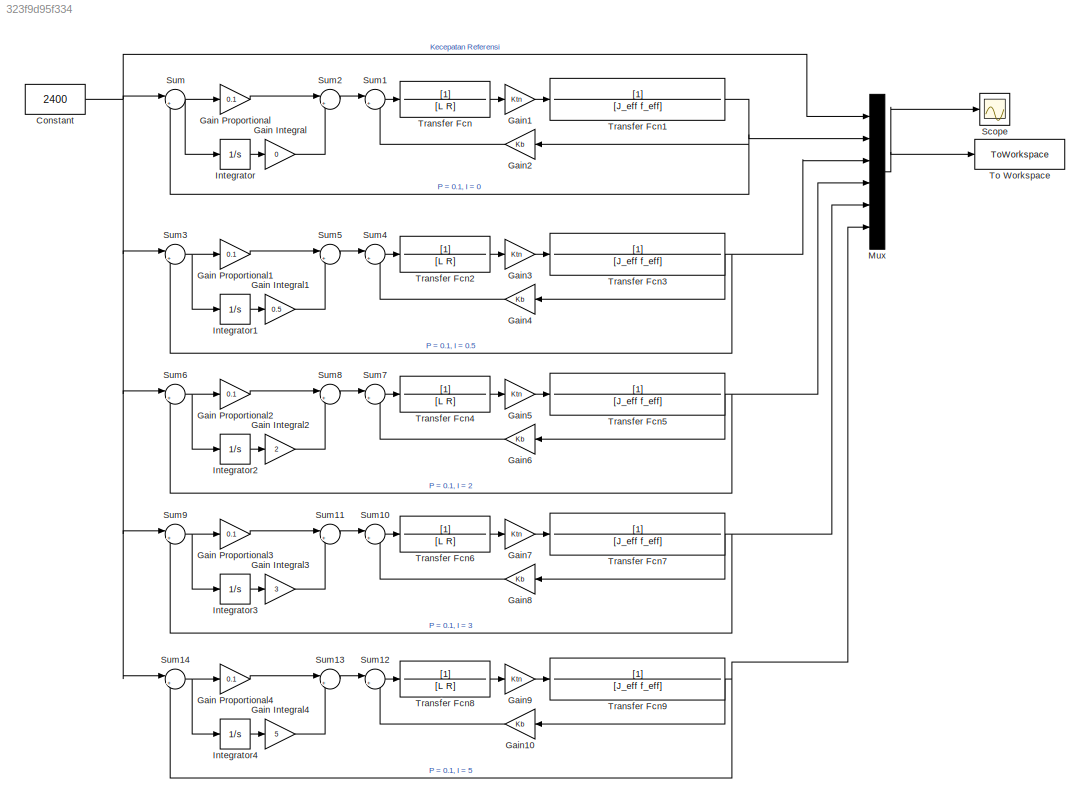
MODEL slx_323f9d95f334
KIND model
CONFIG AbsTol = auto
CONFIG EnableMultiTasking = off
CONFIG FixedStep = auto
CONFIG MaxStep = auto
CONFIG MinStep = auto
CONFIG RelTol = 1e-3
CONFIG SampleTimeConstraint = Unconstrained
CONFIG SolverName = VariableStepAuto
CONFIG StartTime = 0.0
CONFIG StopTime = 2.5
BLOCK [Constant] Constant
  Value = 2400
BLOCK [Gain] Gain Integral
  Gain = 0
BLOCK [Gain] Gain Integral1
  Gain = 0.5
BLOCK [Gain] Gain Integral2
  Gain = 2
BLOCK [Gain] Gain Integral3
  Gain = 3
BLOCK [Gain] Gain Integral4
  Gain = 5
BLOCK [Gain] Gain Proportional
  Gain = 0.1
BLOCK [Gain] Gain Proportional1
  Gain = 0.1
BLOCK [Gain] Gain Proportional2
  Gain = 0.1
BLOCK [Gain] Gain Proportional3
  Gain = 0.1
BLOCK [Gain] Gain Proportional4
  Gain = 0.1
BLOCK [Gain] Gain1
  Gain = Ktn
BLOCK [Gain] Gain10
  Gain = Kb
BLOCK [Gain] Gain2
  Gain = Kb
BLOCK [Gain] Gain3
  Gain = Ktn
BLOCK [Gain] Gain4
  Gain = Kb
BLOCK [Gain] Gain5
  Gain = Ktn
BLOCK [Gain] Gain6
  Gain = Kb
BLOCK [Gain] Gain7
  Gain = Ktn
BLOCK [Gain] Gain8
  Gain = Kb
BLOCK [Gain] Gain9
  Gain = Ktn
BLOCK [Integrator] Integrator
BLOCK [Integrator] Integrator1
BLOCK [Integrator] Integrator2
BLOCK [Integrator] Integrator3
BLOCK [Integrator] Integrator4
BLOCK [Mux] Mux
  DisplayOption = bar
  Inputs = 6
BLOCK [Scope] Scope
  Floating = off
  NumInputPorts = 1
  ScopeSpecificationString = Simulink.scopes.TimeScopeBlockCfg('CurrentConfiguration', extmgr.ConfigurationSet(extmgr.Configuration('Core','General UI',true),extmgr.Configuration('Core','Source UI',true),extmgr.Configuration('Sources','WiredSimulink',true),extmgr.Configuration('Visuals','Time Domain',true,'SerializedDisplays',{struct('MinYLimReal','-386.24892','MaxYLimReal','3476.24031','YLabelReal','','MinYLimMag',' 0.00000'...<+1687ch>
BLOCK [Sum] Sum
  Inputs = |+-
BLOCK [Sum] Sum1
  Inputs = |+-
BLOCK [Sum] Sum10
  Inputs = |+-
BLOCK [Sum] Sum11
  Inputs = |++
BLOCK [Sum] Sum12
  Inputs = |+-
BLOCK [Sum] Sum13
  Inputs = |++
BLOCK [Sum] Sum14
  Inputs = |+-
BLOCK [Sum] Sum2
  Inputs = |++
BLOCK [Sum] Sum3
  Inputs = |+-
BLOCK [Sum] Sum4
  Inputs = |+-
BLOCK [Sum] Sum5
  Inputs = |++
BLOCK [Sum] Sum6
  Inputs = |+-
BLOCK [Sum] Sum7
  Inputs = |+-
BLOCK [Sum] Sum8
  Inputs = |++
BLOCK [Sum] Sum9
  Inputs = |+-
BLOCK [ToWorkspace] To Workspace
  FixptAsFi = on
  MaxDataPoints = inf
  SampleTime = -1
  SaveFormat = Timeseries
  VariableName = DC
BLOCK [TransferFcn] Transfer Fcn
  Denominator = [L R]
BLOCK [TransferFcn] Transfer Fcn1
  Denominator = [J_eff f_eff]
BLOCK [TransferFcn] Transfer Fcn2
  Denominator = [L R]
BLOCK [TransferFcn] Transfer Fcn3
  Denominator = [J_eff f_eff]
BLOCK [TransferFcn] Transfer Fcn4
  Denominator = [L R]
BLOCK [TransferFcn] Transfer Fcn5
  Denominator = [J_eff f_eff]
BLOCK [TransferFcn] Transfer Fcn6
  Denominator = [L R]
BLOCK [TransferFcn] Transfer Fcn7
  Denominator = [J_eff f_eff]
BLOCK [TransferFcn] Transfer Fcn8
  Denominator = [L R]
BLOCK [TransferFcn] Transfer Fcn9
  Denominator = [J_eff f_eff]
NET Constant:1 -> Mux:1, Sum14:1, Sum3:1, Sum6:1, Sum9:1, Sum:1
LINE Gain Integral1:1 -> Sum5:2
LINE Gain Integral2:1 -> Sum8:2
LINE Gain Integral3:1 -> Sum11:2
LINE Gain Integral4:1 -> Sum13:2
LINE Gain Integral:1 -> Sum2:2
LINE Gain Proportional1:1 -> Sum5:1
LINE Gain Proportional2:1 -> Sum8:1
LINE Gain Proportional3:1 -> Sum11:1
LINE Gain Proportional4:1 -> Sum13:1
LINE Gain Proportional:1 -> Sum2:1
LINE Gain10:1 -> Sum12:2
LINE Gain1:1 -> Transfer Fcn1:1
LINE Gain2:1 -> Sum1:2
LINE Gain3:1 -> Transfer Fcn3:1
LINE Gain4:1 -> Sum4:2
LINE Gain5:1 -> Transfer Fcn5:1
LINE Gain6:1 -> Sum7:2
LINE Gain7:1 -> Transfer Fcn7:1
LINE Gain8:1 -> Sum10:2
LINE Gain9:1 -> Transfer Fcn9:1
LINE Integrator1:1 -> Gain Integral1:1
LINE Integrator2:1 -> Gain Integral2:1
LINE Integrator3:1 -> Gain Integral3:1
LINE Integrator4:1 -> Gain Integral4:1
LINE Integrator:1 -> Gain Integral:1
NET Mux:1 -> Scope:1, To Workspace:1
LINE Sum10:1 -> Transfer Fcn6:1
LINE Sum11:1 -> Sum10:1
LINE Sum12:1 -> Transfer Fcn8:1
LINE Sum13:1 -> Sum12:1
NET Sum14:1 -> Gain Proportional4:1, Integrator4:1
LINE Sum1:1 -> Transfer Fcn:1
LINE Sum2:1 -> Sum1:1
NET Sum3:1 -> Gain Proportional1:1, Integrator1:1
LINE Sum4:1 -> Transfer Fcn2:1
LINE Sum5:1 -> Sum4:1
NET Sum6:1 -> Gain Proportional2:1, Integrator2:1
LINE Sum7:1 -> Transfer Fcn4:1
LINE Sum8:1 -> Sum7:1
NET Sum9:1 -> Gain Proportional3:1, Integrator3:1
NET Sum:1 -> Gain Proportional:1, Integrator:1
NET Transfer Fcn1:1 -> Gain2:1, Mux:2, Sum:2
LINE Transfer Fcn2:1 -> Gain3:1
NET Transfer Fcn3:1 -> Gain4:1, Mux:3, Sum3:2
LINE Transfer Fcn4:1 -> Gain5:1
NET Transfer Fcn5:1 -> Gain6:1, Mux:4, Sum6:2
LINE Transfer Fcn6:1 -> Gain7:1
NET Transfer Fcn7:1 -> Gain8:1, Mux:5, Sum9:2
LINE Transfer Fcn8:1 -> Gain9:1
NET Transfer Fcn9:1 -> Gain10:1, Mux:6, Sum14:2
LINE Transfer Fcn:1 -> Gain1:1
note: NET lines group one-source signal fan-out (src -> all destinations, sorted); 1:1 wires keep LINE
